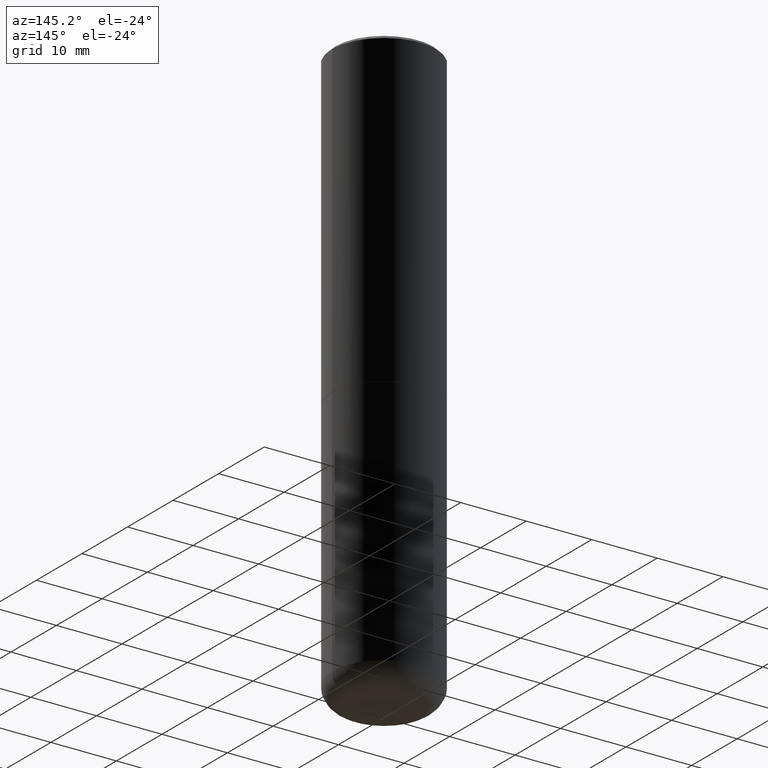
[diagram: clean part render]
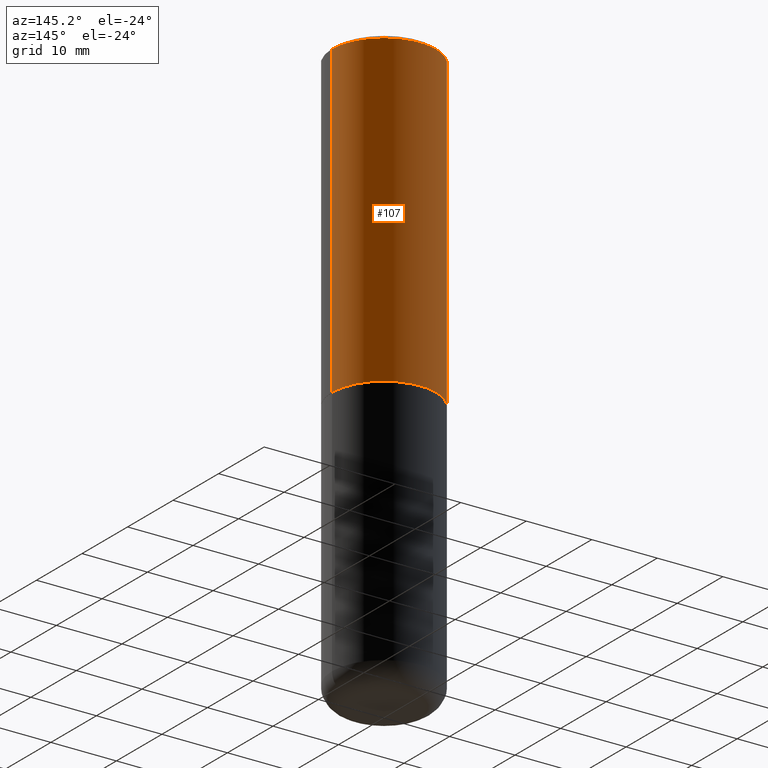
[diagram: same view with one face highlighted and labeled with its STEP entity id]
A machine part, auxiliary view. The second image highlights one B-rep face of the part: STEP entity #107.
In plain terms, the highlighted cylindrical surface (partial cylindrical patch) has radius 7.9375 mm, axis along (-0, 0, 1).
Its self-contained STEP definition (entity closure, byte-faithful):
#14 = DIRECTION ( 'NONE',  ( -2.445468806185136597E-29, 3.491481338843145583E-15, 1.000000000000000000 ) ) ;
#28 = CARTESIAN_POINT ( 'NONE',  ( -0.3124999999999997224, -1.085986778634146418E-15, -1.873999999999999666 ) ) ;
#35 = ORIENTED_EDGE ( 'NONE', *, *, #211, .F. ) ;
#43 = CARTESIAN_POINT ( 'NONE',  ( 0.000000000000000000, 0.000000000000000000, 0.000000000000000000 ) ) ;
#61 = EDGE_CURVE ( 'NONE', #384, #448, #293, .T. ) ;
#67 = DIRECTION ( 'NONE',  ( -2.445468806185136597E-29, 3.491481338843145583E-15, 1.000000000000000000 ) ) ;
#72 = DIRECTION ( 'NONE',  ( -2.445468806185136877E-29, 3.491481338843145188E-15, 1.000000000000000000 ) ) ;
#73 = VERTEX_POINT ( 'NONE', #28 ) ;
#76 = EDGE_LOOP ( 'NONE', ( #252, #235, #35, #119 ) ) ;
#83 = CARTESIAN_POINT ( 'NONE',  ( -0.3124999999999994449, 2.112346210000091499E-15, -0.02000000000000014960 ) ) ;
#107 = ADVANCED_FACE ( 'NONE', ( #227 ), #338, .T. ) ;
#119 = ORIENTED_EDGE ( 'NONE', *, *, #61, .F. ) ;
#173 = DIRECTION ( 'NONE',  ( -2.445468806185136597E-29, 3.491481338843145583E-15, 1.000000000000000000 ) ) ;
#192 = VECTOR ( 'NONE', #286, 39.37007874015748143 ) ;
#211 = EDGE_CURVE ( 'NONE', #448, #279, #217, .T. ) ;
#213 = LINE ( 'NONE', #390, #192 ) ;
#217 = CIRCLE ( 'NONE', #298, 0.3124999999999994449 ) ;
#227 = FACE_OUTER_BOUND ( 'NONE', #76, .T. ) ;
#235 = ORIENTED_EDGE ( 'NONE', *, *, #262, .T. ) ;
#240 = CIRCLE ( 'NONE', #374, 0.3124999999999997224 ) ;
#242 = CARTESIAN_POINT ( 'NONE',  ( 4.890937612370309067E-31, -6.982962677686343378E-17, -0.02000000000000014960 ) ) ;
#252 = ORIENTED_EDGE ( 'NONE', *, *, #283, .T. ) ;
#253 = CARTESIAN_POINT ( 'NONE',  ( 0.3124999999999997224, -8.725211865769010891E-15, -1.873999999999999666 ) ) ;
#262 = EDGE_CURVE ( 'NONE', #73, #279, #213, .T. ) ;
#263 = DIRECTION ( 'NONE',  ( 1.000000000000000000, -6.982962677686266711E-15, 4.876176775795935232E-29 ) ) ;
#277 = DIRECTION ( 'NONE',  ( 1.000000000000000000, -6.982962677686266711E-15, 0.000000000000000000 ) ) ;
#279 = VERTEX_POINT ( 'NONE', #83 ) ;
#283 = EDGE_CURVE ( 'NONE', #384, #73, #240, .T. ) ;
#286 = DIRECTION ( 'NONE',  ( -2.445468806185136877E-29, 3.491481338843145188E-15, 1.000000000000000000 ) ) ;
#293 = LINE ( 'NONE', #380, #455 ) ;
#298 = AXIS2_PLACEMENT_3D ( 'NONE', #242, #173, #385 ) ;
#305 = AXIS2_PLACEMENT_3D ( 'NONE', #43, #67, #263 ) ;
#331 = CARTESIAN_POINT ( 'NONE',  ( 0.3124999999999994449, -2.213735251080463362E-15, -0.02000000000000014960 ) ) ;
#338 = CYLINDRICAL_SURFACE ( 'NONE', #305, 0.3124999999999996114 ) ;
#374 = AXIS2_PLACEMENT_3D ( 'NONE', #467, #14, #277 ) ;
#380 = CARTESIAN_POINT ( 'NONE',  ( 0.3124999999999996114, -2.182175836776955586E-15, 1.523805242436227833E-29 ) ) ;
#384 = VERTEX_POINT ( 'NONE', #253 ) ;
#385 = DIRECTION ( 'NONE',  ( 1.000000000000000000, -6.982962677686267499E-15, 0.000000000000000000 ) ) ;
#390 = CARTESIAN_POINT ( 'NONE',  ( -0.3124999999999996114, 2.220446049250310320E-15, -1.537167215704655990E-29 ) ) ;
#448 = VERTEX_POINT ( 'NONE', #331 ) ;
#455 = VECTOR ( 'NONE', #72, 39.37007874015748143 ) ;
#467 = CARTESIAN_POINT ( 'NONE',  ( 4.582808542790944955E-29, -6.543036028992054122E-15, -1.873999999999999666 ) ) ;